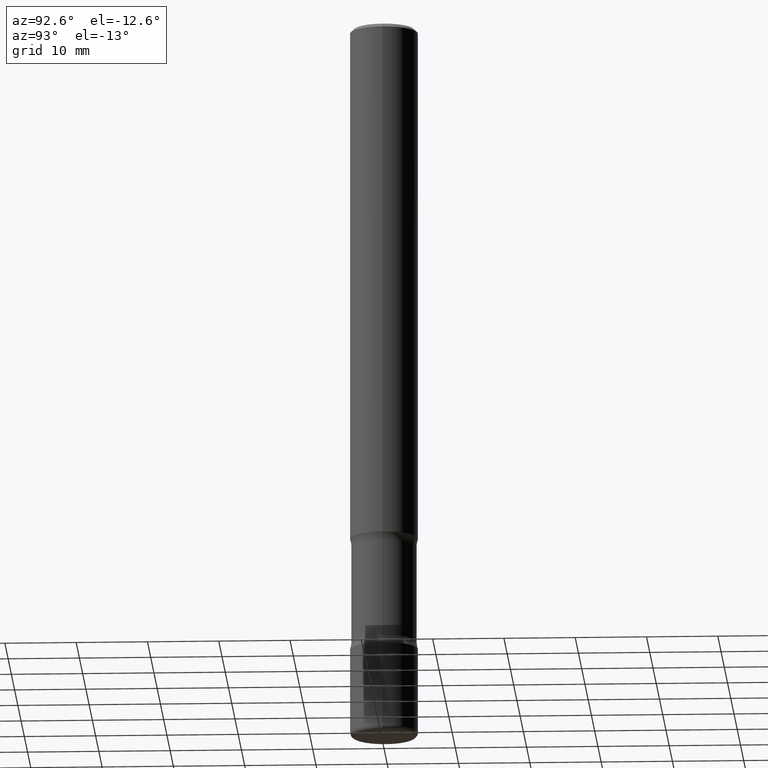
[diagram: clean part render]
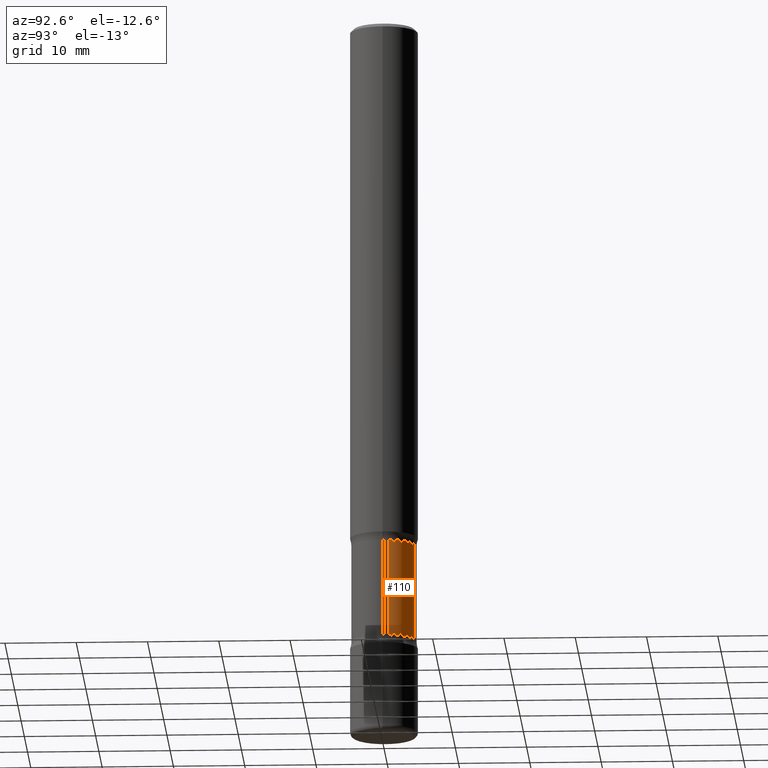
[diagram: same view with one face highlighted and labeled with its STEP entity id]
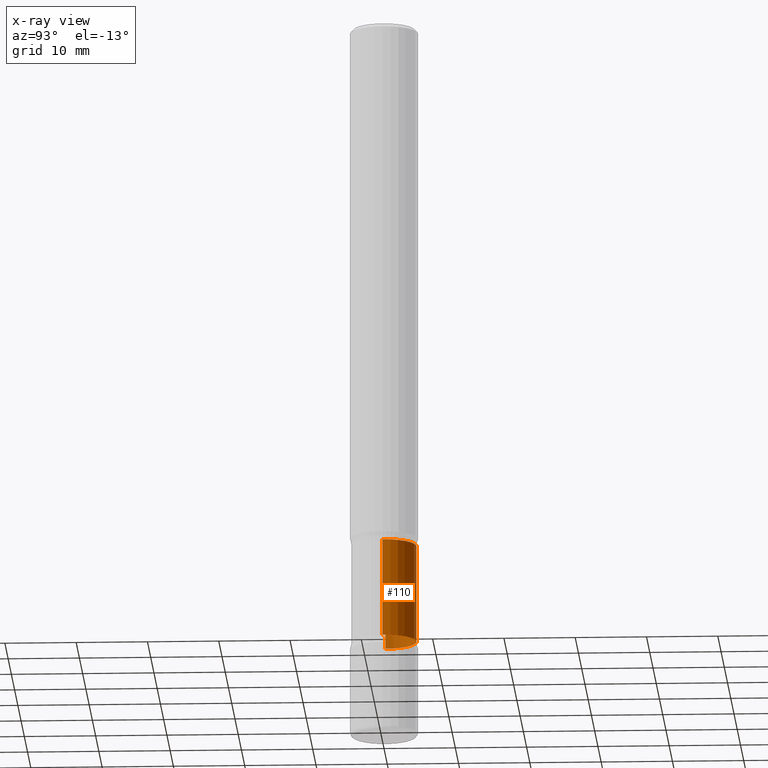
[diagram: x-ray of the same camera — body ghosted, the highlighted face saturated]
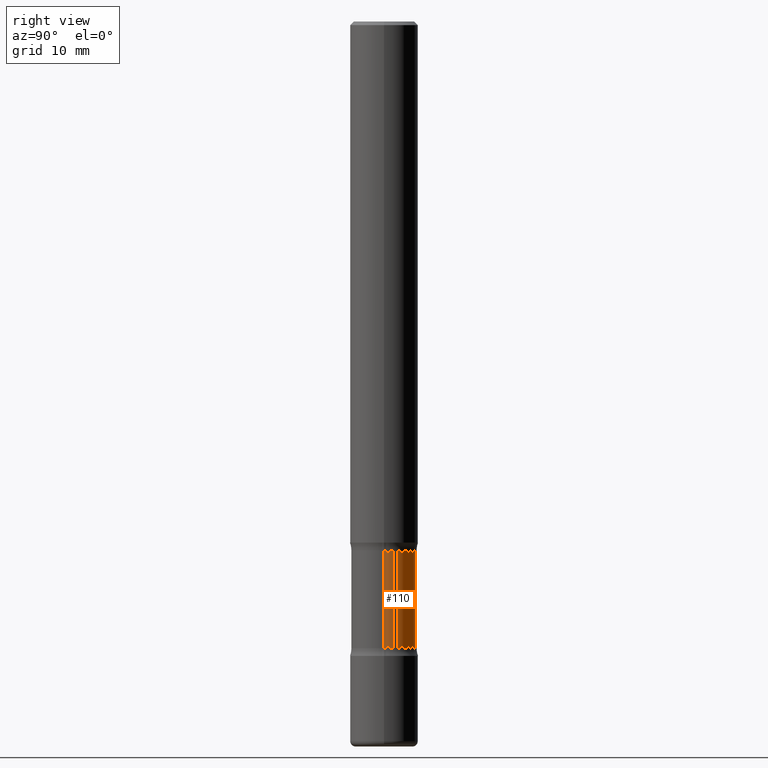
[diagram: same view with one face highlighted and labeled with its STEP entity id]
A machine part, auxiliary view. The second image highlights one B-rep face of the part: STEP entity #110.
The next image is the same camera in x-ray: the body ghosted, the highlighted face saturated — about 0% of this face is hidden behind the body in this view.
A second angle (right view) of the same face is appended — the face is thin or edge-on in the first view.
In plain terms, the highlighted cylindrical surface (edge-blend (fillet) strip) has radius 4.572 mm, axis along (-0, 0, 1).
Its self-contained STEP definition (entity closure, byte-faithful):
#13 = CARTESIAN_POINT ( 'NONE',  ( 7.030722817782267716E-29, -1.003800884917404311E-14, -2.875000000000000000 ) ) ;
#60 = CARTESIAN_POINT ( 'NONE',  ( -0.1799999999999999656, -8.759031924805863213E-15, -2.875000000000000000 ) ) ;
#92 = DIRECTION ( 'NONE',  ( -2.445468806185136597E-29, 3.491481338843145583E-15, 1.000000000000000000 ) ) ;
#93 = AXIS2_PLACEMENT_3D ( 'NONE', #13, #326, #517 ) ;
#110 = ADVANCED_FACE ( 'NONE', ( #191 ), #446, .T. ) ;
#115 = AXIS2_PLACEMENT_3D ( 'NONE', #464, #92, #469 ) ;
#129 = VECTOR ( 'NONE', #530, 39.37007874015748143 ) ;
#130 = DIRECTION ( 'NONE',  ( -2.445468806185136877E-29, 3.491481338843145188E-15, 1.000000000000000000 ) ) ;
#191 = FACE_OUTER_BOUND ( 'NONE', #376, .T. ) ;
#207 = ORIENTED_EDGE ( 'NONE', *, *, #428, .T. ) ;
#220 = VERTEX_POINT ( 'NONE', #596 ) ;
#227 = DIRECTION ( 'NONE',  ( -2.445468806185136597E-29, 3.491481338843145583E-15, 1.000000000000000000 ) ) ;
#234 = EDGE_CURVE ( 'NONE', #676, #273, #593, .T. ) ;
#248 = ORIENTED_EDGE ( 'NONE', *, *, #234, .F. ) ;
#267 = EDGE_CURVE ( 'NONE', #273, #731, #292, .T. ) ;
#273 = VERTEX_POINT ( 'NONE', #472 ) ;
#292 = CIRCLE ( 'NONE', #115, 0.1799999999999999378 ) ;
#297 = ORIENTED_EDGE ( 'NONE', *, *, #454, .T. ) ;
#326 = DIRECTION ( 'NONE',  ( -2.445468806185136597E-29, 3.491481338843145583E-15, 1.000000000000000000 ) ) ;
#345 = VECTOR ( 'NONE', #130, 39.37007874015748143 ) ;
#376 = EDGE_LOOP ( 'NONE', ( #207, #297, #466, #248 ) ) ;
#377 = LINE ( 'NONE', #60, #345 ) ;
#428 = EDGE_CURVE ( 'NONE', #676, #220, #675, .T. ) ;
#446 = CYLINDRICAL_SURFACE ( 'NONE', #93, 0.1799999999999999656 ) ;
#454 = EDGE_CURVE ( 'NONE', #220, #731, #377, .T. ) ;
#464 = CARTESIAN_POINT ( 'NONE',  ( 7.135014249761037125E-29, -1.018690937394627965E-14, -2.917646805273079735 ) ) ;
#466 = ORIENTED_EDGE ( 'NONE', *, *, #267, .F. ) ;
#469 = DIRECTION ( 'NONE',  ( 1.000000000000000000, -6.982962677686270655E-15, 0.000000000000000000 ) ) ;
#472 = CARTESIAN_POINT ( 'NONE',  ( 0.1799999999999999378, -1.144384265592980798E-14, -2.917646805273079735 ) ) ;
#486 = DIRECTION ( 'NONE',  ( 1.000000000000000000, -6.982962677686269077E-15, 0.000000000000000000 ) ) ;
#517 = DIRECTION ( 'NONE',  ( 1.000000000000000000, -6.982962677686269866E-15, 0.000000000000000000 ) ) ;
#530 = DIRECTION ( 'NONE',  ( -2.445468806185136877E-29, 3.491481338843145188E-15, 1.000000000000000000 ) ) ;
#536 = CARTESIAN_POINT ( 'NONE',  ( 0.1799999999999999656, -1.129494213115757143E-14, -2.875000000000000000 ) ) ;
#588 = CARTESIAN_POINT ( 'NONE',  ( 0.1799999999999999933, -1.332821744316230112E-14, -3.457353194726919821 ) ) ;
#591 = CARTESIAN_POINT ( 'NONE',  ( -0.1799999999999999378, -8.806836834600976720E-15, -2.917646805273079735 ) ) ;
#593 = LINE ( 'NONE', #536, #129 ) ;
#596 = CARTESIAN_POINT ( 'NONE',  ( -0.1799999999999999933, -1.084011214660570641E-14, -3.457353194726919821 ) ) ;
#640 = AXIS2_PLACEMENT_3D ( 'NONE', #791, #227, #486 ) ;
#675 = CIRCLE ( 'NONE', #640, 0.1799999999999999933 ) ;
#676 = VERTEX_POINT ( 'NONE', #588 ) ;
#731 = VERTEX_POINT ( 'NONE', #591 ) ;
#791 = CARTESIAN_POINT ( 'NONE',  ( 8.454849389669208679E-29, -1.207128416117877279E-14, -3.457353194726919821 ) ) ;